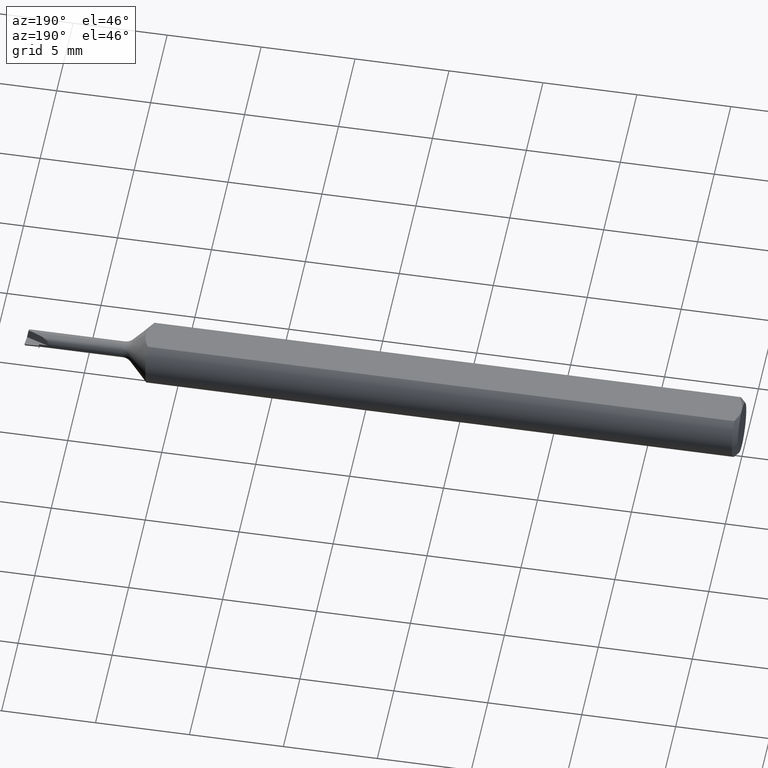
[diagram: clean part render]
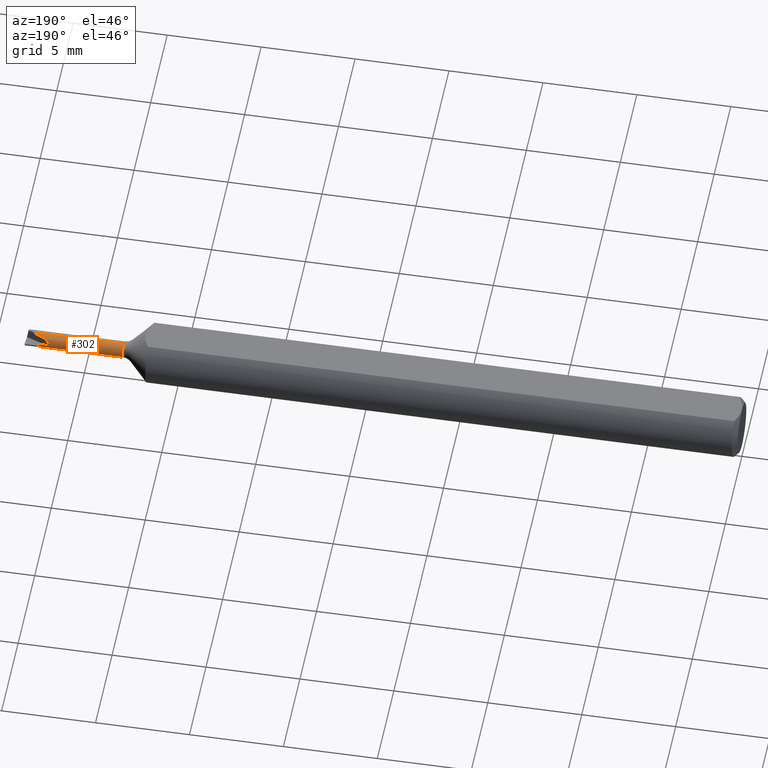
[diagram: same view with one face highlighted and labeled with its STEP entity id]
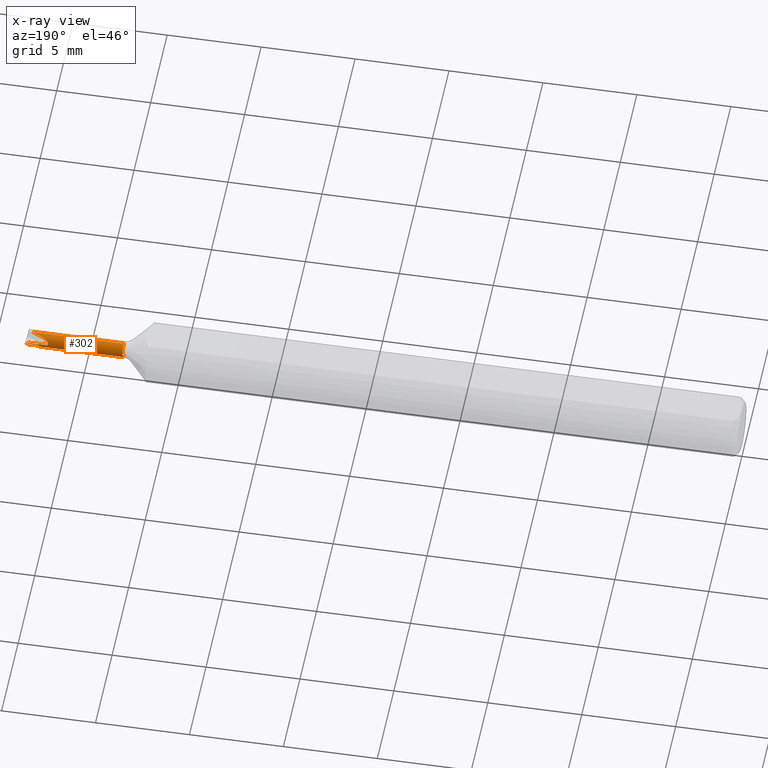
[diagram: x-ray of the same camera — body ghosted, the highlighted face saturated]
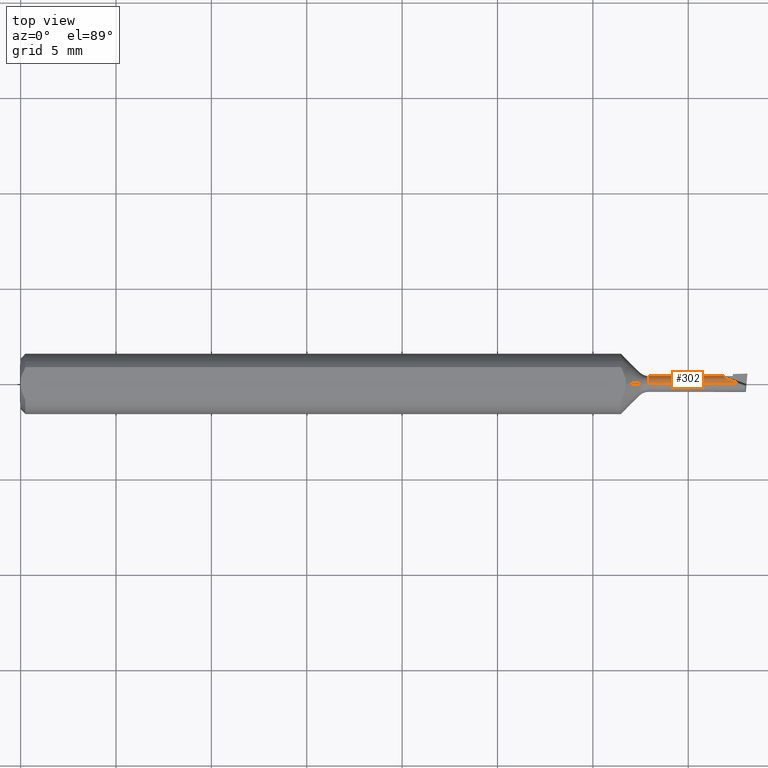
[diagram: same view with one face highlighted and labeled with its STEP entity id]
A machine part, auxiliary view. The second image highlights one B-rep face of the part: STEP entity #302.
The next image is the same camera in x-ray: the body ghosted, the highlighted face saturated — about 0% of this face is hidden behind the body in this view.
A second angle (top view) of the same face is appended — the face is thin or edge-on in the first view.
In plain terms, the highlighted cylindrical surface (edge-blend (fillet) strip) has radius 0.4191 mm, axis along (-1, -0, -0).
Its self-contained STEP definition (entity closure, byte-faithful):
#8 = VERTEX_POINT ( 'NONE', #620 ) ;
#16 = EDGE_CURVE ( 'NONE', #511, #639, #342, .T. ) ;
#18 = ORIENTED_EDGE ( 'NONE', *, *, #38, .F. ) ;
#32 = CARTESIAN_POINT ( 'NONE',  ( 1.445184144298829798, 0.01650000000000001465, 0.009665476220843939592 ) ) ;
#38 = EDGE_CURVE ( 'NONE', #147, #8, #454, .T. ) ;
#55 = VERTEX_POINT ( 'NONE', #399 ) ;
#57 = EDGE_LOOP ( 'NONE', ( #278, #70, #175, #499, #570, #220, #690, #18 ) ) ;
#62 = LINE ( 'NONE', #394, #229 ) ;
#67 = DIRECTION ( 'NONE',  ( -1.000000000000000000, -0.000000000000000000, -0.000000000000000000 ) ) ;
#70 = ORIENTED_EDGE ( 'NONE', *, *, #457, .T. ) ;
#71 = VECTOR ( 'NONE', #67, 39.37007874015748143 ) ;
#88 = EDGE_CURVE ( 'NONE', #511, #484, #247, .T. ) ;
#91 = CARTESIAN_POINT ( 'NONE',  ( 1.485163143730661384, 0.000000000000000000, 0.01650000000000001119 ) ) ;
#93 = LINE ( 'NONE', #139, #515 ) ;
#101 = DIRECTION ( 'NONE',  ( -1.000000000000000000, -0.000000000000000000, -0.000000000000000000 ) ) ;
#108 = CARTESIAN_POINT ( 'NONE',  ( 0.000000000000000000, 0.000000000000000000, 0.000000000000000000 ) ) ;
#115 = CIRCLE ( 'NONE', #355, 0.01650000000000000078 ) ;
#126 = CARTESIAN_POINT ( 'NONE',  ( 1.485163143730661384, 0.000000000000000000, 0.01650000000000001119 ) ) ;
#138 = AXIS2_PLACEMENT_3D ( 'NONE', #656, #538, #436 ) ;
#139 = CARTESIAN_POINT ( 'NONE',  ( 7.972244684472105919E-35, 0.01650000000000001119, -1.170174725306101331E-17 ) ) ;
#147 = VERTEX_POINT ( 'NONE', #246 ) ;
#167 = CARTESIAN_POINT ( 'NONE',  ( 1.496173569350492283, 0.003830031936729970735, -0.01616491562459390283 ) ) ;
#173 = CARTESIAN_POINT ( 'NONE',  ( 1.452756378269187909, 0.01649999999999999384, -2.052597612783503544E-18 ) ) ;
#175 = ORIENTED_EDGE ( 'NONE', *, *, #345, .F. ) ;
#179 = DIRECTION ( 'NONE',  ( -1.000000000000000000, -0.000000000000000000, -0.000000000000000000 ) ) ;
#220 = ORIENTED_EDGE ( 'NONE', *, *, #644, .T. ) ;
#222 = FACE_OUTER_BOUND ( 'NONE', #57, .T. ) ;
#229 = VECTOR ( 'NONE', #179, 39.37007874015748143 ) ;
#246 = CARTESIAN_POINT ( 'NONE',  ( 1.496425322068737573, 0.005643332364873441392, -0.01550492824296752052 ) ) ;
#247 =( BOUNDED_CURVE ( )  B_SPLINE_CURVE ( 3, ( #91, #415, #32, #419 ),
 .UNSPECIFIED., .F., .F. ) 
 B_SPLINE_CURVE_WITH_KNOTS ( ( 4, 4 ),
 ( 4.990162771046303902, 6.560959097841201348 ),
 .UNSPECIFIED. ) 
 CURVE ( )  GEOMETRIC_REPRESENTATION_ITEM ( )  RATIONAL_B_SPLINE_CURVE ( ( 1.000000000000000000, 0.8047378541243648264, 0.8047378541243648264, 1.000000000000000000 ) ) 
 REPRESENTATION_ITEM ( '' )  );
#256 = DIRECTION ( 'NONE',  ( 1.000000000000000000, 0.000000000000000000, 0.000000000000000000 ) ) ;
#264 = AXIS2_PLACEMENT_3D ( 'NONE', #108, #101, #652 ) ;
#278 = ORIENTED_EDGE ( 'NONE', *, *, #392, .T. ) ;
#302 = ADVANCED_FACE ( 'NONE', ( #222 ), #594, .T. ) ;
#315 = CARTESIAN_POINT ( 'NONE',  ( 1.495960036649731872, 0.001929674010451333955, -0.01650000000000000772 ) ) ;
#319 = CARTESIAN_POINT ( 'NONE',  ( 1.496425322068737573, 0.005643332364873441392, -0.01550492824296752052 ) ) ;
#333 =( BOUNDED_CURVE ( )  B_SPLINE_CURVE ( 3, ( #319, #167, #315, #534 ),
 .UNSPECIFIED., .F., .F. ) 
 B_SPLINE_CURVE_WITH_KNOTS ( ( 4, 4 ),
 ( 5.379018757165730413, 5.728084607564590591 ),
 .UNSPECIFIED. ) 
 CURVE ( )  GEOMETRIC_REPRESENTATION_ITEM ( )  RATIONAL_B_SPLINE_CURVE ( ( 1.000000000000000000, 0.9898718353414723836, 0.9898718353414723836, 1.000000000000000000 ) ) 
 REPRESENTATION_ITEM ( '' )  );
#342 = LINE ( 'NONE', #556, #71 ) ;
#345 = EDGE_CURVE ( 'NONE', #639, #55, #605, .T. ) ;
#347 = CARTESIAN_POINT ( 'NONE',  ( 1.560200597524541877, 0.005643332364873441392, -0.01550492824296752052 ) ) ;
#355 = AXIS2_PLACEMENT_3D ( 'NONE', #473, #519, #407 ) ;
#389 = CARTESIAN_POINT ( 'NONE',  ( 1.470000000000000195, 0.01650000000000001119, -1.170174725306101331E-17 ) ) ;
#392 = EDGE_CURVE ( 'NONE', #147, #430, #333, .T. ) ;
#394 = CARTESIAN_POINT ( 'NONE',  ( 0.000000000000000000, 2.020667218593134095E-18, -0.01650000000000001119 ) ) ;
#398 = CARTESIAN_POINT ( 'NONE',  ( 1.495791212049516705, 2.020667218593134095E-18, -0.01650000000000001119 ) ) ;
#399 = CARTESIAN_POINT ( 'NONE',  ( 1.295355339059327315, 2.020667218593135251E-18, -0.01650000000000001812 ) ) ;
#406 = VERTEX_POINT ( 'NONE', #389 ) ;
#407 = DIRECTION ( 'NONE',  ( 0.000000000000000000, 0.000000000000000000, 1.000000000000000000 ) ) ;
#415 = CARTESIAN_POINT ( 'NONE',  ( 1.458607466065616087, 0.009665476220843929184, 0.01650000000000002159 ) ) ;
#419 = CARTESIAN_POINT ( 'NONE',  ( 1.452756378269187909, 0.01649999999999999384, -2.052597612783503544E-18 ) ) ;
#430 = VERTEX_POINT ( 'NONE', #398 ) ;
#436 = DIRECTION ( 'NONE',  ( 0.000000000000000000, 0.000000000000000000, 1.000000000000000000 ) ) ;
#450 = VECTOR ( 'NONE', #614, 39.37007874015748143 ) ;
#454 = LINE ( 'NONE', #347, #450 ) ;
#457 = EDGE_CURVE ( 'NONE', #430, #55, #62, .T. ) ;
#473 = CARTESIAN_POINT ( 'NONE',  ( 1.470000000000000195, 0.000000000000000000, 0.000000000000000000 ) ) ;
#484 = VERTEX_POINT ( 'NONE', #173 ) ;
#499 = ORIENTED_EDGE ( 'NONE', *, *, #16, .F. ) ;
#511 = VERTEX_POINT ( 'NONE', #126 ) ;
#515 = VECTOR ( 'NONE', #256, 39.37007874015748143 ) ;
#519 = DIRECTION ( 'NONE',  ( -1.000000000000000000, -0.000000000000000000, -0.000000000000000000 ) ) ;
#534 = CARTESIAN_POINT ( 'NONE',  ( 1.495791212049516705, 2.020667218593134095E-18, -0.01650000000000001119 ) ) ;
#538 = DIRECTION ( 'NONE',  ( -1.000000000000000000, -0.000000000000000000, -0.000000000000000000 ) ) ;
#556 = CARTESIAN_POINT ( 'NONE',  ( 0.000000000000000000, 0.000000000000000000, 0.01650000000000001119 ) ) ;
#570 = ORIENTED_EDGE ( 'NONE', *, *, #88, .T. ) ;
#594 = CYLINDRICAL_SURFACE ( 'NONE', #264, 0.01650000000000001119 ) ;
#601 = EDGE_CURVE ( 'NONE', #406, #8, #115, .T. ) ;
#605 = CIRCLE ( 'NONE', #138, 0.01650000000000001812 ) ;
#614 = DIRECTION ( 'NONE',  ( -1.000000000000000000, 0.000000000000000000, 0.000000000000000000 ) ) ;
#620 = CARTESIAN_POINT ( 'NONE',  ( 1.470000000000000195, 0.005643332364873441392, -0.01550492824296752052 ) ) ;
#625 = CARTESIAN_POINT ( 'NONE',  ( 1.295355339059327315, 0.000000000000000000, 0.01650000000000001812 ) ) ;
#639 = VERTEX_POINT ( 'NONE', #625 ) ;
#644 = EDGE_CURVE ( 'NONE', #484, #406, #93, .T. ) ;
#652 = DIRECTION ( 'NONE',  ( 0.000000000000000000, 0.000000000000000000, 1.000000000000000000 ) ) ;
#656 = CARTESIAN_POINT ( 'NONE',  ( 1.295355339059327315, 0.000000000000000000, 0.000000000000000000 ) ) ;
#690 = ORIENTED_EDGE ( 'NONE', *, *, #601, .T. ) ;